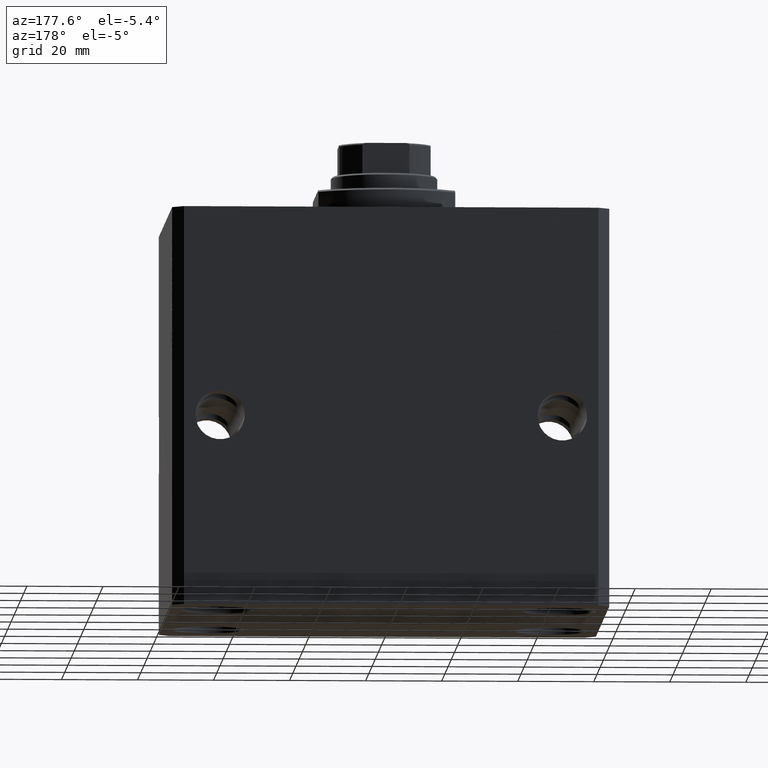
[diagram: clean part render]
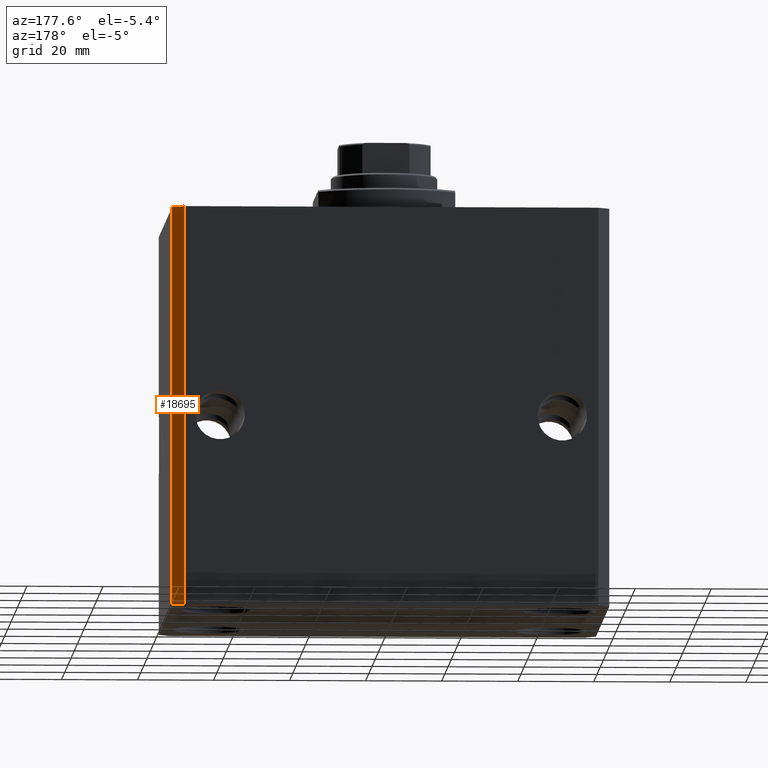
[diagram: same view with one face highlighted and labeled with its STEP entity id]
A machine part, auxiliary view. The second image highlights one B-rep face of the part: STEP entity #18695.
In plain terms, the highlighted planar face has unit normal (0.7071, 0.7071, 0).
Its self-contained STEP definition (entity closure, byte-faithful):
#1326 = LINE ( 'NONE', #1783, #40614 ) ;
#1783 = CARTESIAN_POINT ( 'NONE',  ( 54.50000000000058975, 45.00000000000002842, -105.0000000000000000 ) ) ;
#2015 = LINE ( 'NONE', #8306, #8795 ) ;
#8306 = CARTESIAN_POINT ( 'NONE',  ( 57.50000000000055422, 41.99999999999997868, -105.0000000000000000 ) ) ;
#8523 = DIRECTION ( 'NONE',  ( 0.000000000000000000, 0.000000000000000000, 1.000000000000000000 ) ) ;
#8795 = VECTOR ( 'NONE', #22920, 999.9999999999998863 ) ;
#8963 = CARTESIAN_POINT ( 'NONE',  ( 54.50000000000058975, 45.00000000000002842, -105.0000000000000000 ) ) ;
#10903 = ORIENTED_EDGE ( 'NONE', *, *, #29262, .T. ) ;
#12086 = CARTESIAN_POINT ( 'NONE',  ( 57.50000000000055422, 41.99999999999997868, -105.0000000000000000 ) ) ;
#14883 = DIRECTION ( 'NONE',  ( 0.7071067811865574537, 0.7071067811865376918, -0.000000000000000000 ) ) ;
#17466 = AXIS2_PLACEMENT_3D ( 'NONE', #43428, #14883, #39725 ) ;
#18695 = ADVANCED_FACE ( 'NONE', ( #31145 ), #22074, .T. ) ;
#18766 = DIRECTION ( 'NONE',  ( -0.7071067811865376918, 0.7071067811865574537, 0.000000000000000000 ) ) ;
#20558 = CARTESIAN_POINT ( 'NONE',  ( 57.50000000000055422, 41.99999999999997868, 0.000000000000000000 ) ) ;
#21708 = CARTESIAN_POINT ( 'NONE',  ( 54.50000000000058975, 45.00000000000002842, 0.000000000000000000 ) ) ;
#22074 = PLANE ( 'NONE',  #17466 ) ;
#22558 = EDGE_CURVE ( 'NONE', #45893, #38136, #27220, .T. ) ;
#22920 = DIRECTION ( 'NONE',  ( -0.7071067811865376918, 0.7071067811865574537, 0.000000000000000000 ) ) ;
#23613 = VECTOR ( 'NONE', #18766, 999.9999999999998863 ) ;
#24448 = VERTEX_POINT ( 'NONE', #8963 ) ;
#26630 = EDGE_CURVE ( 'NONE', #24448, #43161, #1326, .T. ) ;
#27220 = LINE ( 'NONE', #41377, #37561 ) ;
#27542 = EDGE_CURVE ( 'NONE', #38136, #43161, #43138, .T. ) ;
#29262 = EDGE_CURVE ( 'NONE', #45893, #24448, #2015, .T. ) ;
#30356 = EDGE_LOOP ( 'NONE', ( #43768, #36356, #10903, #40535 ) ) ;
#30709 = DIRECTION ( 'NONE',  ( 0.000000000000000000, 0.000000000000000000, 1.000000000000000000 ) ) ;
#31145 = FACE_OUTER_BOUND ( 'NONE', #30356, .T. ) ;
#36162 = CARTESIAN_POINT ( 'NONE',  ( 57.50000000000055422, 41.99999999999997868, 0.000000000000000000 ) ) ;
#36356 = ORIENTED_EDGE ( 'NONE', *, *, #22558, .F. ) ;
#37561 = VECTOR ( 'NONE', #30709, 1000.000000000000000 ) ;
#38136 = VERTEX_POINT ( 'NONE', #20558 ) ;
#39725 = DIRECTION ( 'NONE',  ( -0.7071067811865376918, 0.7071067811865574537, 0.000000000000000000 ) ) ;
#40535 = ORIENTED_EDGE ( 'NONE', *, *, #26630, .T. ) ;
#40614 = VECTOR ( 'NONE', #8523, 1000.000000000000000 ) ;
#41377 = CARTESIAN_POINT ( 'NONE',  ( 57.50000000000055422, 41.99999999999997868, -105.0000000000000000 ) ) ;
#43138 = LINE ( 'NONE', #36162, #23613 ) ;
#43161 = VERTEX_POINT ( 'NONE', #21708 ) ;
#43428 = CARTESIAN_POINT ( 'NONE',  ( 57.50000000000055422, 41.99999999999997868, -105.0000000000000000 ) ) ;
#43768 = ORIENTED_EDGE ( 'NONE', *, *, #27542, .F. ) ;
#45893 = VERTEX_POINT ( 'NONE', #12086 ) ;